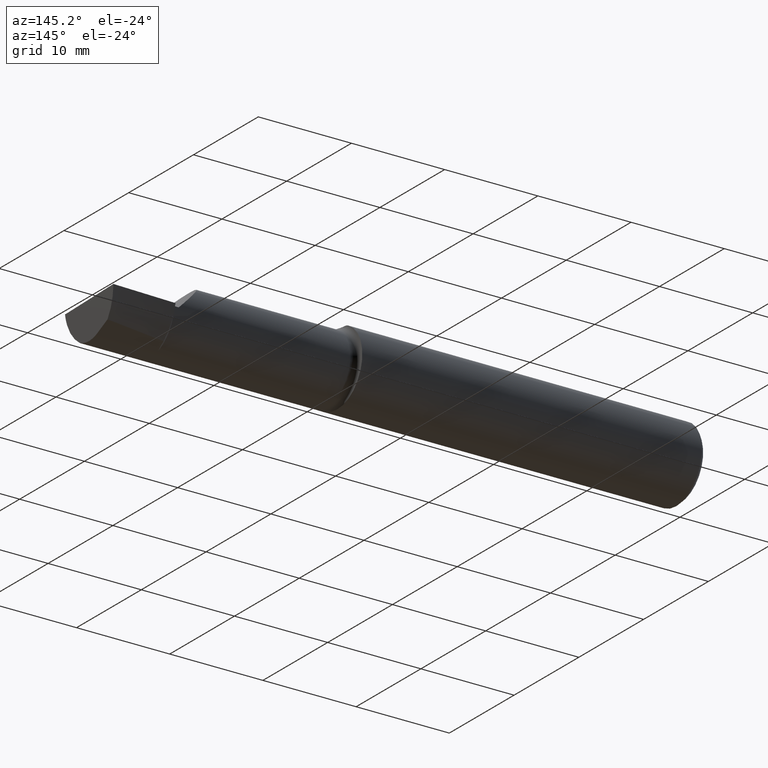
[diagram: clean part render]
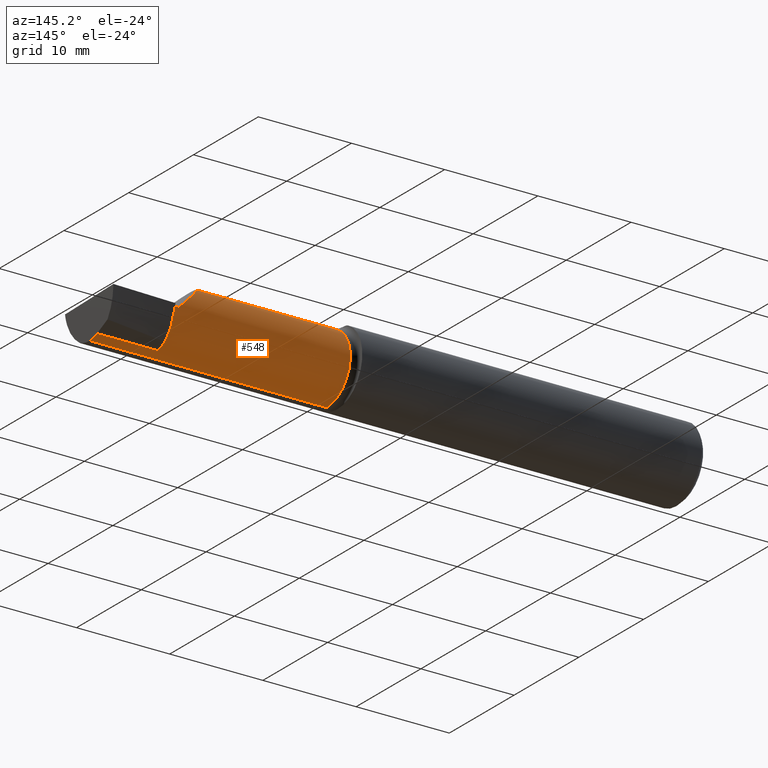
[diagram: same view with one face highlighted and labeled with its STEP entity id]
A machine part, auxiliary view. The second image highlights one B-rep face of the part: STEP entity #548.
In plain terms, the highlighted cylindrical surface (partial cylindrical patch) has radius 3.6551 mm, axis along (-1, -0, -0).
Its self-contained STEP definition (entity closure, byte-faithful):
#6 = CARTESIAN_POINT ( 'NONE',  ( 2.476713598110543035, -0.008170903630063763509, -0.1439000000000001112 ) ) ;
#8 = VECTOR ( 'NONE', #505, 39.37007874015748143 ) ;
#18 = CARTESIAN_POINT ( 'NONE',  ( 2.500000000000000000, 0.02421669862456291358, -0.1352217681310924902 ) ) ;
#20 = EDGE_CURVE ( 'NONE', #75, #327, #229, .T. ) ;
#27 = CARTESIAN_POINT ( 'NONE',  ( 1.474999999999999867, -0.02500000000000000486, -0.1439000000000000556 ) ) ;
#33 = CIRCLE ( 'NONE', #694, 0.1439000000000000556 ) ;
#55 = DIRECTION ( 'NONE',  ( -1.000000000000000000, -0.000000000000000000, -0.000000000000000000 ) ) ;
#61 = ORIENTED_EDGE ( 'NONE', *, *, #704, .F. ) ;
#69 = EDGE_CURVE ( 'NONE', #171, #672, #584, .T. ) ;
#75 = VERTEX_POINT ( 'NONE', #242 ) ;
#79 = VERTEX_POINT ( 'NONE', #189 ) ;
#91 = ORIENTED_EDGE ( 'NONE', *, *, #354, .T. ) ;
#108 = CIRCLE ( 'NONE', #457, 0.1439000000000001667 ) ;
#113 = LINE ( 'NONE', #173, #197 ) ;
#129 = CARTESIAN_POINT ( 'NONE',  ( 2.056100000000000705, -0.02500000000000000486, 0.1439000000000001112 ) ) ;
#133 = CARTESIAN_POINT ( 'NONE',  ( 2.476130359589496788, -0.02499999999999999098, -0.1439000000000001112 ) ) ;
#150 = EDGE_CURVE ( 'NONE', #75, #79, #246, .T. ) ;
#152 = ORIENTED_EDGE ( 'NONE', *, *, #20, .F. ) ;
#157 = VERTEX_POINT ( 'NONE', #27 ) ;
#171 = VERTEX_POINT ( 'NONE', #291 ) ;
#173 = CARTESIAN_POINT ( 'NONE',  ( 0.000000000000000000, -0.02499999999999999098, -0.1439000000000001112 ) ) ;
#189 = CARTESIAN_POINT ( 'NONE',  ( 2.199999999999999289, 0.1189000000000001028, 3.826894855694925850E-18 ) ) ;
#191 = DIRECTION ( 'NONE',  ( -1.000000000000000000, -0.000000000000000000, -0.000000000000000000 ) ) ;
#197 = VECTOR ( 'NONE', #389, 39.37007874015748143 ) ;
#217 = CARTESIAN_POINT ( 'NONE',  ( 2.477647009804057276, 0.008402520951239019972, -0.1409776580835795656 ) ) ;
#229 = LINE ( 'NONE', #399, #8 ) ;
#236 = CARTESIAN_POINT ( 'NONE',  ( 2.056100000000000705, 0.05929466837451181221, 0.1439000000000001112 ) ) ;
#238 = DIRECTION ( 'NONE',  ( 1.000000000000000000, 0.000000000000000000, 0.000000000000000000 ) ) ;
#242 = CARTESIAN_POINT ( 'NONE',  ( 2.056100000000000705, -0.02500000000000000486, 0.1439000000000001112 ) ) ;
#246 =( BOUNDED_CURVE ( )  B_SPLINE_CURVE ( 3, ( #129, #236, #460, #689 ),
 .UNSPECIFIED., .F., .T. ) 
 B_SPLINE_CURVE_WITH_KNOTS ( ( 4, 4 ),
 ( 0.000000000000000000, 1.570796326794898112 ),
 .UNSPECIFIED. ) 
 CURVE ( )  GEOMETRIC_REPRESENTATION_ITEM ( )  RATIONAL_B_SPLINE_CURVE ( ( 1.000000000000000000, 0.8047378541243646044, 0.8047378541243646044, 1.000000000000000000 ) ) 
 REPRESENTATION_ITEM ( '' )  );
#252 = CARTESIAN_POINT ( 'NONE',  ( 1.474999999999999867, -0.02500000000000000486, 0.000000000000000000 ) ) ;
#253 = CARTESIAN_POINT ( 'NONE',  ( 1.474999999999999867, -0.02500000000000002220, 0.1439000000000000556 ) ) ;
#258 = EDGE_LOOP ( 'NONE', ( #695, #91, #61, #152, #317, #369, #512, #722 ) ) ;
#275 = VERTEX_POINT ( 'NONE', #604 ) ;
#280 = DIRECTION ( 'NONE',  ( 0.000000000000000000, 0.000000000000000000, 1.000000000000000000 ) ) ;
#288 = FACE_OUTER_BOUND ( 'NONE', #258, .T. ) ;
#291 = CARTESIAN_POINT ( 'NONE',  ( 2.478902233428061930, 0.02421669862456291358, -0.1352217681310924902 ) ) ;
#317 = ORIENTED_EDGE ( 'NONE', *, *, #150, .T. ) ;
#325 = AXIS2_PLACEMENT_3D ( 'NONE', #527, #191, #688 ) ;
#327 = VERTEX_POINT ( 'NONE', #253 ) ;
#329 = DIRECTION ( 'NONE',  ( 0.000000000000000000, 0.000000000000000000, 1.000000000000000000 ) ) ;
#337 = CARTESIAN_POINT ( 'NONE',  ( 2.476130359589496788, -0.02499999999999999098, -0.1439000000000001112 ) ) ;
#354 = EDGE_CURVE ( 'NONE', #502, #157, #113, .T. ) ;
#364 = EDGE_CURVE ( 'NONE', #502, #171, #396, .T. ) ;
#369 = ORIENTED_EDGE ( 'NONE', *, *, #568, .T. ) ;
#389 = DIRECTION ( 'NONE',  ( -1.000000000000000000, -0.000000000000000000, -0.000000000000000000 ) ) ;
#391 = CARTESIAN_POINT ( 'NONE',  ( 2.219999999999999751, -0.02500000000000000486, 0.000000000000000000 ) ) ;
#396 =( BOUNDED_CURVE ( )  B_SPLINE_CURVE ( 3, ( #337, #6, #217, #665 ),
 .UNSPECIFIED., .F., .T. ) 
 B_SPLINE_CURVE_WITH_KNOTS ( ( 4, 4 ),
 ( 0.2749416817183363282, 0.6240075321171963951 ),
 .UNSPECIFIED. ) 
 CURVE ( )  GEOMETRIC_REPRESENTATION_ITEM ( )  RATIONAL_B_SPLINE_CURVE ( ( 1.000000000000000000, 0.9898718353414723836, 0.9898718353414723836, 1.000000000000000000 ) ) 
 REPRESENTATION_ITEM ( '' )  );
#399 = CARTESIAN_POINT ( 'NONE',  ( 0.000000000000000000, -0.02500000000000000486, 0.1439000000000001112 ) ) ;
#430 = EDGE_CURVE ( 'NONE', #275, #672, #108, .T. ) ;
#457 = AXIS2_PLACEMENT_3D ( 'NONE', #391, #508, #329 ) ;
#460 = CARTESIAN_POINT ( 'NONE',  ( 2.115705331625488572, 0.1189000000000002277, 0.08429466837451159156 ) ) ;
#495 = VECTOR ( 'NONE', #238, 39.37007874015748143 ) ;
#502 = VERTEX_POINT ( 'NONE', #133 ) ;
#505 = DIRECTION ( 'NONE',  ( -1.000000000000000000, -0.000000000000000000, -0.000000000000000000 ) ) ;
#508 = DIRECTION ( 'NONE',  ( -1.000000000000000000, -0.000000000000000000, -0.000000000000000000 ) ) ;
#512 = ORIENTED_EDGE ( 'NONE', *, *, #430, .T. ) ;
#522 = DIRECTION ( 'NONE',  ( -1.000000000000000000, 0.000000000000000000, 0.000000000000000000 ) ) ;
#523 = LINE ( 'NONE', #590, #495 ) ;
#527 = CARTESIAN_POINT ( 'NONE',  ( 0.000000000000000000, -0.02500000000000000486, 0.000000000000000000 ) ) ;
#548 = ADVANCED_FACE ( 'NONE', ( #288 ), #576, .T. ) ;
#568 = EDGE_CURVE ( 'NONE', #79, #275, #523, .T. ) ;
#576 = CYLINDRICAL_SURFACE ( 'NONE', #325, 0.1439000000000001112 ) ;
#578 = VECTOR ( 'NONE', #522, 39.37007874015748143 ) ;
#584 = LINE ( 'NONE', #18, #578 ) ;
#590 = CARTESIAN_POINT ( 'NONE',  ( 0.000000000000000000, 0.1189000000000001028, 3.826894855694925850E-18 ) ) ;
#604 = CARTESIAN_POINT ( 'NONE',  ( 2.219999999999999751, 0.1189000000000001583, 3.826894855694927391E-18 ) ) ;
#665 = CARTESIAN_POINT ( 'NONE',  ( 2.478902233428061930, 0.02421669862456291358, -0.1352217681310924902 ) ) ;
#672 = VERTEX_POINT ( 'NONE', #717 ) ;
#688 = DIRECTION ( 'NONE',  ( 0.000000000000000000, 0.000000000000000000, 1.000000000000000000 ) ) ;
#689 = CARTESIAN_POINT ( 'NONE',  ( 2.199999999999999289, 0.1189000000000001028, 3.826894855694925850E-18 ) ) ;
#694 = AXIS2_PLACEMENT_3D ( 'NONE', #252, #55, #280 ) ;
#695 = ORIENTED_EDGE ( 'NONE', *, *, #364, .F. ) ;
#704 = EDGE_CURVE ( 'NONE', #327, #157, #33, .T. ) ;
#717 = CARTESIAN_POINT ( 'NONE',  ( 2.219999999999999751, 0.02421669862456293787, -0.1352217681310926567 ) ) ;
#722 = ORIENTED_EDGE ( 'NONE', *, *, #69, .F. ) ;